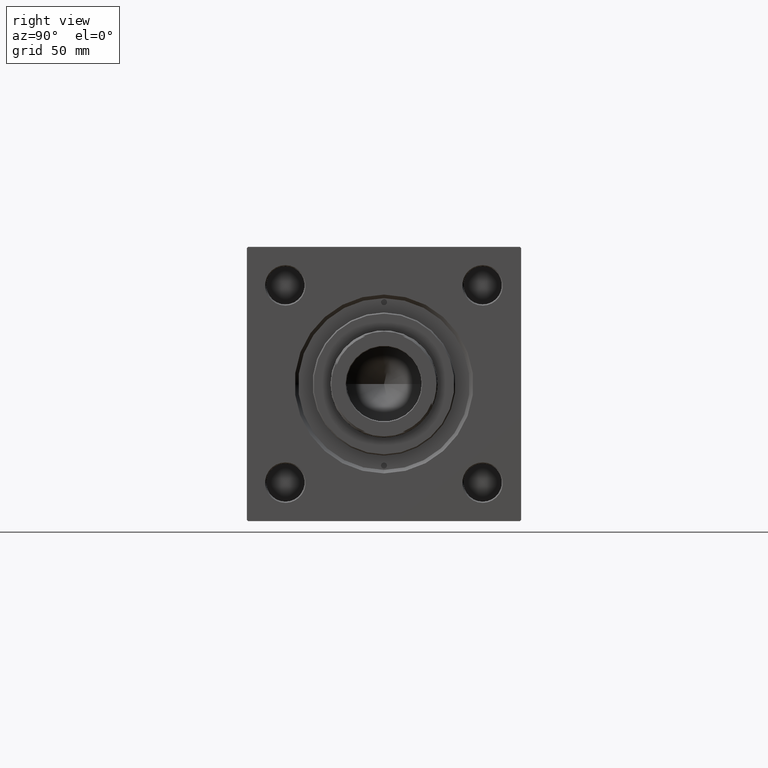
[diagram: clean part render]
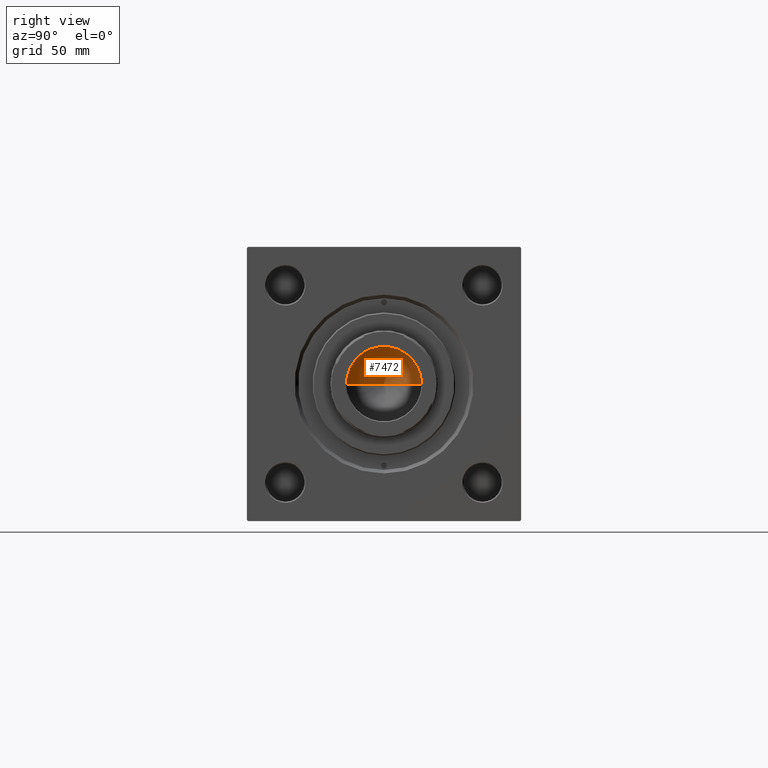
[diagram: same view with one face highlighted and labeled with its STEP entity id]
A machine part, right view. The second image highlights one B-rep face of the part: STEP entity #7472.
In plain terms, the highlighted conical surface has half-angle 59 deg.
Its self-contained STEP definition (entity closure, byte-faithful):
#1262 = DIRECTION ( 'NONE',  ( 1.000000000000000000, 0.000000000000000000, 0.000000000000000000 ) ) ;
#7472 = ADVANCED_FACE ( 'NONE', ( #20468 ), #26091, .F. ) ;
#9454 = VECTOR ( 'NONE', #47435, 1000.000000000000000 ) ;
#9851 = EDGE_CURVE ( 'NONE', #18890, #19861, #29684, .T. ) ;
#10680 = ORIENTED_EDGE ( 'NONE', *, *, #19938, .T. ) ;
#11411 = VERTEX_POINT ( 'NONE', #16892 ) ;
#12023 = ORIENTED_EDGE ( 'NONE', *, *, #43722, .T. ) ;
#16892 = CARTESIAN_POINT ( 'NONE',  ( -15.74999999999998934, 1.928818708657080161E-15, 141.0000000000000000 ) ) ;
#18890 = VERTEX_POINT ( 'NONE', #43352 ) ;
#19424 = ORIENTED_EDGE ( 'NONE', *, *, #9851, .F. ) ;
#19861 = VERTEX_POINT ( 'NONE', #34395 ) ;
#19938 = EDGE_CURVE ( 'NONE', #11411, #19861, #35416, .T. ) ;
#20468 = FACE_OUTER_BOUND ( 'NONE', #29109, .T. ) ;
#26091 = CONICAL_SURFACE ( 'NONE', #34282, 15.74999999999998934, 1.029744258676652313 ) ;
#27116 = CARTESIAN_POINT ( 'NONE',  ( -15.74999999999998934, 1.928818708657080161E-15, 141.0000000000000000 ) ) ;
#28930 = DIRECTION ( 'NONE',  ( 1.000000000000000000, 0.000000000000000000, 0.000000000000000000 ) ) ;
#29109 = EDGE_LOOP ( 'NONE', ( #19424, #12023, #10680 ) ) ;
#29684 = LINE ( 'NONE', #30190, #40937 ) ;
#30190 = CARTESIAN_POINT ( 'NONE',  ( 15.74999999999998934, 0.000000000000000000, 141.0000000000000000 ) ) ;
#32553 = DIRECTION ( 'NONE',  ( -0.000000000000000000, -0.000000000000000000, 1.000000000000000000 ) ) ;
#34282 = AXIS2_PLACEMENT_3D ( 'NONE', #44361, #43857, #28930 ) ;
#34395 = CARTESIAN_POINT ( 'NONE',  ( 15.74999999999998934, 0.000000000000000000, 141.0000000000000000 ) ) ;
#35416 = CIRCLE ( 'NONE', #37045, 15.74999999999998934 ) ;
#37045 = AXIS2_PLACEMENT_3D ( 'NONE', #47759, #32553, #1262 ) ;
#40937 = VECTOR ( 'NONE', #44844, 1000.000000000000000 ) ;
#43352 = CARTESIAN_POINT ( 'NONE',  ( -1.584115414415908206E-14, 0.000000000000000000, 131.5364452503159214 ) ) ;
#43722 = EDGE_CURVE ( 'NONE', #18890, #11411, #46930, .T. ) ;
#43857 = DIRECTION ( 'NONE',  ( -0.000000000000000000, -0.000000000000000000, 1.000000000000000000 ) ) ;
#44361 = CARTESIAN_POINT ( 'NONE',  ( 0.000000000000000000, 0.000000000000000000, 141.0000000000000000 ) ) ;
#44844 = DIRECTION ( 'NONE',  ( 0.8571673007021112234, 0.000000000000000000, 0.5150380749100560429 ) ) ;
#46930 = LINE ( 'NONE', #27116, #9454 ) ;
#47435 = DIRECTION ( 'NONE',  ( -0.8571673007021112234, 1.049727191138617340E-16, 0.5150380749100560429 ) ) ;
#47759 = CARTESIAN_POINT ( 'NONE',  ( 0.000000000000000000, 0.000000000000000000, 141.0000000000000000 ) ) ;